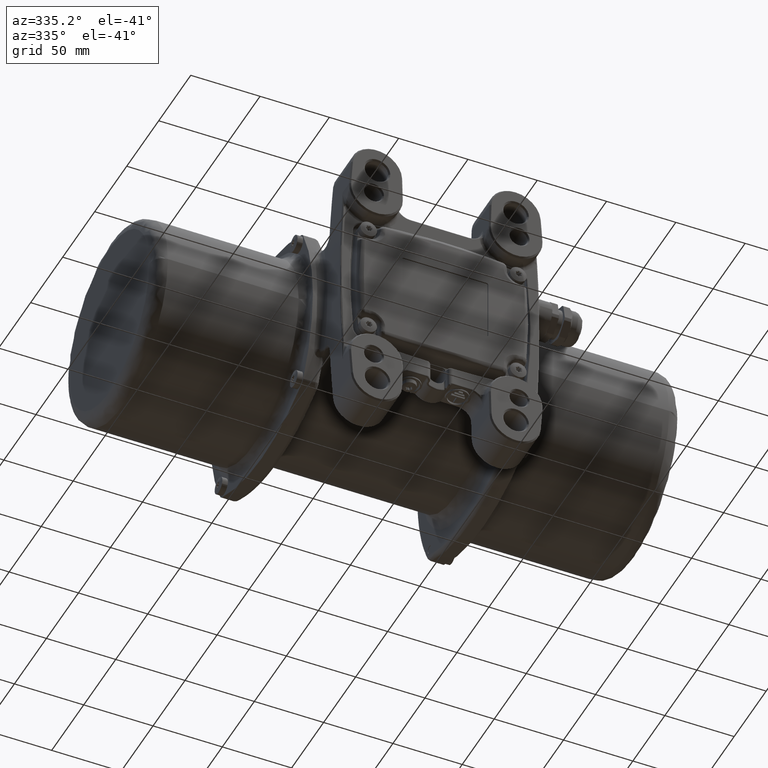
[diagram: clean part render]
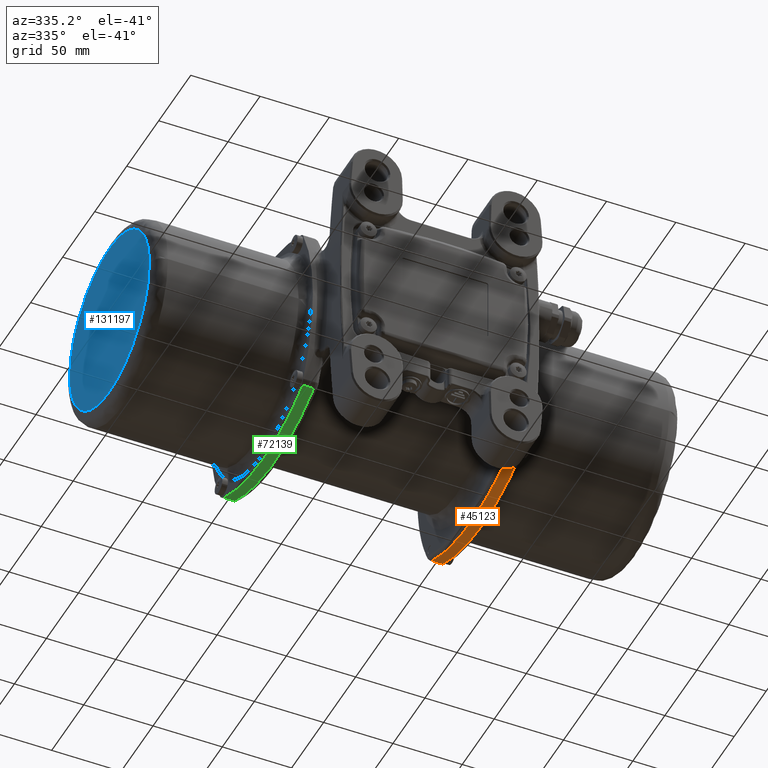
[diagram: same view with three faces highlighted in distinct colors, each labeled with its STEP entity id]
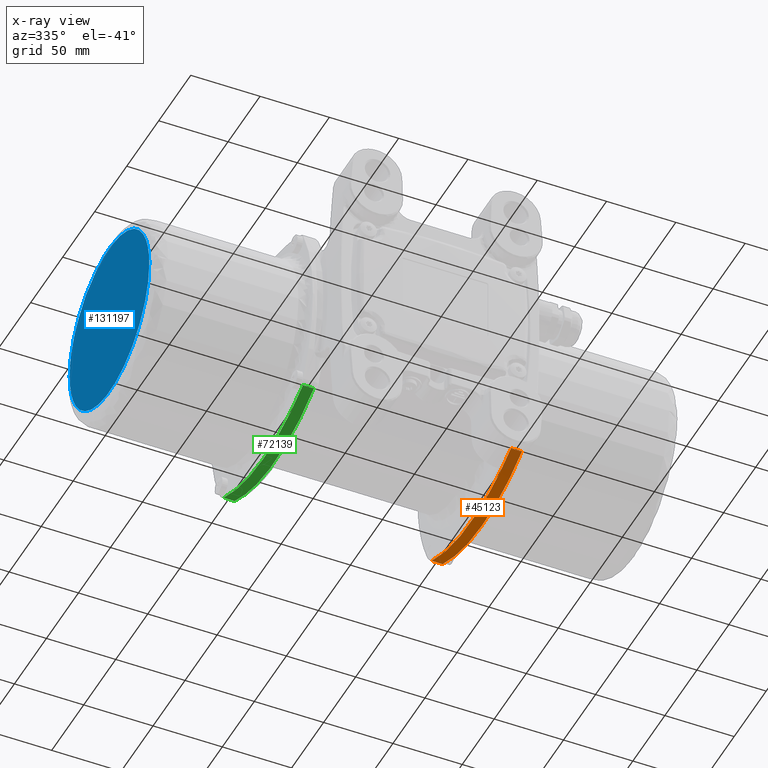
[diagram: x-ray of the same camera — body ghosted, the three highlighted faces saturated]
A machine part, auxiliary view with three faces highlighted in distinct colors.
The next image is the same camera in x-ray (body ghosted, the three faces saturated) — at least one of them is partly hidden behind the body in this view.
Their STEP definitions:

[orange] entity #45123 — the highlighted cylindrical surface (partial cylindrical patch) has radius 134.5 mm, axis along (1, -0, 0).
#578 = CARTESIAN_POINT ( 'NONE',  ( 70.95612079195639400, 144.3279870018037900, -76.79075269301340300 ) ) ;
#1075 = CARTESIAN_POINT ( 'NONE',  ( 71.15591171405670000, 176.9114528322650100, -64.90360969500959200 ) ) ;
#1553 = CARTESIAN_POINT ( 'NONE',  ( 70.93342020331979800, 137.7394523097894100, -78.07064002832389300 ) ) ;
#3006 = CARTESIAN_POINT ( 'NONE',  ( 70.92155368645160300, 96.40308679842370100, -78.73502348362490000 ) ) ;
#7958 = CIRCLE ( 'NONE', #44256, 134.5000000000000000 ) ;
#12620 = LINE ( 'NONE', #86490, #139344 ) ;
#13884 = CARTESIAN_POINT ( 'NONE',  ( 70.89872631646930800, 109.7026604506482000, -80.00142736022189600 ) ) ;
#13933 = VERTEX_POINT ( 'NONE', #39553 ) ;
#14347 = ORIENTED_EDGE ( 'NONE', *, *, #84470, .F. ) ;
#21048 = CARTESIAN_POINT ( 'NONE',  ( 79.00000000000000000, 115.0000000000000000, 54.50000000000000000 ) ) ;
#24264 = CARTESIAN_POINT ( 'NONE',  ( 70.92947539684750800, 136.4105827614282000, -78.29179268681869500 ) ) ;
#25452 = CARTESIAN_POINT ( 'NONE',  ( -90.00000000000000000, 115.0000000000000000, 54.50000000000000000 ) ) ;
#29924 = DIRECTION ( 'NONE',  ( 1.000000000000000000, -8.326672684688669100E-017, 2.810135053042584500E-017 ) ) ;
#32844 = VERTEX_POINT ( 'NONE', #59864 ) ;
#35613 = CARTESIAN_POINT ( 'NONE',  ( 70.91900989626839200, 132.3998665928463900, -78.87657176073919600 ) ) ;
#36541 = CARTESIAN_POINT ( 'NONE',  ( 71.15591171405661400, 53.08854716773560500, -64.90360969501009000 ) ) ;
#37970 = CARTESIAN_POINT ( 'NONE',  ( 70.95596132125859900, 85.79743960532529500, -76.79844603611310600 ) ) ;
#38602 = VERTEX_POINT ( 'NONE', #129188 ) ;
#39553 = CARTESIAN_POINT ( 'NONE',  ( 71.15591171405661400, 53.08854716773560500, -64.90360969501009000 ) ) ;
#42733 = DIRECTION ( 'NONE',  ( 1.031805784967617600E-016, -1.754069834444949900E-015, 1.000000000000000000 ) ) ;
#44256 = AXIS2_PLACEMENT_3D ( 'NONE', #21048, #123340, #42733 ) ;
#45123 = ADVANCED_FACE ( 'NONE', ( #61818 ), #74071, .T. ) ;
#46412 = CARTESIAN_POINT ( 'NONE',  ( 71.01667232937410300, 157.2117544991929800, -73.31593401862650700 ) ) ;
#48344 = CARTESIAN_POINT ( 'NONE',  ( 70.96122672423730600, 84.48391189989530400, -76.49934134550059600 ) ) ;
#49307 = CARTESIAN_POINT ( 'NONE',  ( 71.11590479820939900, 57.88959588610629900, -67.39298084578220500 ) ) ;
#57828 = B_SPLINE_CURVE_WITH_KNOTS ( 'NONE', 3,
 ( #1075, #112844, #113816, #46412, #136365, #578, #69032, #1553, #24264, #102997, #35613, #58213, #125561, #13884, #105853, #3006, #69975, #137322, #81768, #37970, #48344, #83215, #92661, #93626, #49307, #36541 ),
 .UNSPECIFIED., .F., .F.,
 ( 4, 2, 2, 2, 2, 2, 2, 2, 2, 2, 2, 2, 4 ),
 ( 0.0000000000000000000, 0.1250000000000001900, 0.2500000000000000000, 0.3125000000000001100, 0.3437500000000001700, 0.3750000000000006100, 0.5000000000000000000, 0.6250000000000002200, 0.6875000000000003300, 0.7187500000000000000, 0.7500000000000004400, 0.8749999999999998900, 1.000000000000000000 ),
 .UNSPECIFIED. ) ;
#58213 = CARTESIAN_POINT ( 'NONE',  ( 70.90455637896269500, 125.7115112714863900, -79.68106259761140100 ) ) ;
#58952 = DIRECTION ( 'NONE',  ( 1.031805784967617600E-016, 1.031805784967617600E-016, 1.000000000000000000 ) ) ;
#59864 = CARTESIAN_POINT ( 'NONE',  ( 79.00000000000000000, 176.9114528322650100, -64.90360969500959200 ) ) ;
#61818 = FACE_OUTER_BOUND ( 'NONE', #64731, .T. ) ;
#64731 = EDGE_LOOP ( 'NONE', ( #73407, #102922, #14347, #109646 ) ) ;
#69032 = CARTESIAN_POINT ( 'NONE',  ( 70.94624692404100600, 141.7074509130106000, -77.34912294438520100 ) ) ;
#69975 = CARTESIAN_POINT ( 'NONE',  ( 70.92867178042560300, 93.74703827547368500, -78.33762384781360300 ) ) ;
#73407 = ORIENTED_EDGE ( 'NONE', *, *, #100930, .T. ) ;
#74071 = CYLINDRICAL_SURFACE ( 'NONE', #105609, 134.5000000000000000 ) ;
#81768 = CARTESIAN_POINT ( 'NONE',  ( 70.94607786587259600, 88.43803684278299200, -77.35800536310789300 ) ) ;
#82511 = DIRECTION ( 'NONE',  ( 1.000000000000000000, -8.326672684688669100E-017, 2.810135053042584500E-017 ) ) ;
#83215 = CARTESIAN_POINT ( 'NONE',  ( 70.98911848798539400, 77.94978262712649600, -74.90817766600410700 ) ) ;
#84470 = EDGE_CURVE ( 'NONE', #13933, #131757, #12620, .T. ) ;
#86490 = CARTESIAN_POINT ( 'NONE',  ( -90.00000000000000000, 53.08854716773560500, -64.90360969501009000 ) ) ;
#92661 = CARTESIAN_POINT ( 'NONE',  ( 71.01642895906819300, 72.82934880716479100, -73.33022565197050800 ) ) ;
#93626 = CARTESIAN_POINT ( 'NONE',  ( 71.07982323717331500, 62.79928969357421000, -69.57262492494500300 ) ) ;
#97028 = LINE ( 'NONE', #110397, #123380 ) ;
#100930 = EDGE_CURVE ( 'NONE', #38602, #32844, #97028, .T. ) ;
#102922 = ORIENTED_EDGE ( 'NONE', *, *, #106299, .T. ) ;
#102997 = CARTESIAN_POINT ( 'NONE',  ( 70.92226811561560900, 133.7402720909343800, -78.69487775857129500 ) ) ;
#104185 = CARTESIAN_POINT ( 'NONE',  ( 79.00000000000000000, 53.08854716773560500, -64.90360969501009000 ) ) ;
#105609 = AXIS2_PLACEMENT_3D ( 'NONE', #25452, #82511, #58952 ) ;
#105853 = CARTESIAN_POINT ( 'NONE',  ( 70.90445274694329200, 104.3776834847536200, -79.68674690552009600 ) ) ;
#106299 = EDGE_CURVE ( 'NONE', #32844, #131757, #7958, .T. ) ;
#109646 = ORIENTED_EDGE ( 'NONE', *, *, #112103, .F. ) ;
#109888 = DIRECTION ( 'NONE',  ( 1.000000000000000000, -8.326672684688669100E-017, 2.810135053042584500E-017 ) ) ;
#110397 = CARTESIAN_POINT ( 'NONE',  ( -90.00000000000000000, 176.9114528322650100, -64.90360969500969200 ) ) ;
#112103 = EDGE_CURVE ( 'NONE', #38602, #13933, #57828, .T. ) ;
#112844 = CARTESIAN_POINT ( 'NONE',  ( 71.11590491391339700, 172.1104179814515200, -67.39297365537450400 ) ) ;
#113816 = CARTESIAN_POINT ( 'NONE',  ( 71.07988990124039200, 167.2086469652070100, -69.56853907827068900 ) ) ;
#123340 = DIRECTION ( 'NONE',  ( -1.000000000000000000, 8.326672684688669100E-017, -2.810135053042584500E-017 ) ) ;
#123380 = VECTOR ( 'NONE', #109888, 1000.000000000000000 ) ;
#125561 = CARTESIAN_POINT ( 'NONE',  ( 70.89877822204360300, 120.3695749411576100, -79.99856294098270800 ) ) ;
#129188 = CARTESIAN_POINT ( 'NONE',  ( 71.15591171405670000, 176.9114528322650100, -64.90360969500959200 ) ) ;
#131757 = VERTEX_POINT ( 'NONE', #104185 ) ;
#136365 = CARTESIAN_POINT ( 'NONE',  ( 70.98947238709419600, 152.1165397897254900, -74.88772248997069900 ) ) ;
#137322 = CARTESIAN_POINT ( 'NONE',  ( 70.94145714165648500, 89.76626286524930300, -77.61860839077000700 ) ) ;
#139344 = VECTOR ( 'NONE', #29924, 1000.000000000000000 ) ;

[blue] entity #131197 — the highlighted planar face has unit normal (-1, 0, -0).
#2149 = CARTESIAN_POINT ( 'NONE',  ( -190.0000000000000000, 177.2000000000030000, -5.998555886321420200E-012 ) ) ;
#3828 = DIRECTION ( 'NONE',  ( -1.000000000000000000, 1.021747410019493900E-013, -5.620270106084610700E-017 ) ) ;
#5183 = ORIENTED_EDGE ( 'NONE', *, *, #106845, .F. ) ;
#12987 = CARTESIAN_POINT ( 'NONE',  ( -190.0000000000135000, 52.80000000001430000, -6.013304111636330700E-012 ) ) ;
#26029 = CARTESIAN_POINT ( 'NONE',  ( -190.0000000000145000, 43.60000000000879800, -6.013814814227660600E-012 ) ) ;
#34226 = CARTESIAN_POINT ( 'NONE',  ( -190.0000000000007400, 177.2000000000030600, 124.3999999999827300 ) ) ;
#34719 = CARTESIAN_POINT ( 'NONE',  ( -190.0000000000000000, 177.2000000000030000, -5.998555886321420200E-012 ) ) ;
#35706 = CARTESIAN_POINT ( 'NONE',  ( -190.0000000000007700, 177.2000000000026600, -124.3999999999950300 ) ) ;
#39362 = FACE_OUTER_BOUND ( 'NONE', #114839, .T. ) ;
#39508 = CARTESIAN_POINT ( 'NONE',  ( -190.0000000000000000, 177.2000000000030000, -5.998555886321420200E-012 ) ) ;
#45359 =( BOUNDED_CURVE ( )  B_SPLINE_CURVE ( 3, ( #34719, #34226, #92240, #12987 ),
 .UNSPECIFIED., .F., .F. ) 
 B_SPLINE_CURVE_WITH_KNOTS ( ( 4, 4 ),
 ( 0.0000000000000000000, 1.000000000000000000 ),
 .UNSPECIFIED. ) 
 CURVE ( )  GEOMETRIC_REPRESENTATION_ITEM ( )  RATIONAL_B_SPLINE_CURVE ( ( 1.000000000000000000, 0.3333333333333327600, 0.3333333333333327600, 1.000000000000000000 ) ) 
 REPRESENTATION_ITEM ( '' )  );
#55364 = EDGE_CURVE ( 'NONE', #118508, #119389, #129363, .T. ) ;
#69603 = CARTESIAN_POINT ( 'NONE',  ( -190.0000000000135000, 52.80000000001430000, -6.013304111636330700E-012 ) ) ;
#85595 = ORIENTED_EDGE ( 'NONE', *, *, #55364, .F. ) ;
#92240 = CARTESIAN_POINT ( 'NONE',  ( -190.0000000000135000, 52.80000000001425100, 124.3999999999828200 ) ) ;
#93501 = DIRECTION ( 'NONE',  ( -1.021747410019493900E-013, -1.000000000000000000, -5.551115123126359600E-017 ) ) ;
#102121 = CARTESIAN_POINT ( 'NONE',  ( -190.0000000000135000, 52.80000000001369600, -124.3999999999946500 ) ) ;
#103406 = AXIS2_PLACEMENT_3D ( 'NONE', #26029, #3828, #93501 ) ;
#105127 = CARTESIAN_POINT ( 'NONE',  ( -190.0000000000135000, 52.80000000001430000, -6.013304111636330700E-012 ) ) ;
#106845 = EDGE_CURVE ( 'NONE', #119389, #118508, #45359, .T. ) ;
#114839 = EDGE_LOOP ( 'NONE', ( #5183, #85595 ) ) ;
#115632 = PLANE ( 'NONE',  #103406 ) ;
#118508 = VERTEX_POINT ( 'NONE', #105127 ) ;
#119389 = VERTEX_POINT ( 'NONE', #39508 ) ;
#129363 =( BOUNDED_CURVE ( )  B_SPLINE_CURVE ( 3, ( #69603, #102121, #35706, #2149 ),
 .UNSPECIFIED., .F., .F. ) 
 B_SPLINE_CURVE_WITH_KNOTS ( ( 4, 4 ),
 ( 0.0000000000000000000, 1.000000000000000000 ),
 .UNSPECIFIED. ) 
 CURVE ( )  GEOMETRIC_REPRESENTATION_ITEM ( )  RATIONAL_B_SPLINE_CURVE ( ( 1.000000000000000000, 0.3333333333333324800, 0.3333333333333324800, 1.000000000000000000 ) ) 
 REPRESENTATION_ITEM ( '' )  );
#131197 = ADVANCED_FACE ( 'NONE', ( #39362 ), #115632, .T. ) ;

[green] entity #72139 — the highlighted cylindrical surface (partial cylindrical patch) has radius 134.5 mm, axis along (1, -0, 0).
#4770 = CARTESIAN_POINT ( 'NONE',  ( -71.15591171405640100, 176.9114528322650100, -64.90360969500959200 ) ) ;
#6449 = ORIENTED_EDGE ( 'NONE', *, *, #113545, .F. ) ;
#6962 = CARTESIAN_POINT ( 'NONE',  ( -79.00000000000000000, 53.08854716773560500, -64.90360969501009000 ) ) ;
#8857 = CARTESIAN_POINT ( 'NONE',  ( -90.00000000000000000, 115.0000000000000000, 54.50000000000000000 ) ) ;
#11327 = CARTESIAN_POINT ( 'NONE',  ( -71.15591171405651500, 53.08854716773560500, -64.90360969501009000 ) ) ;
#12062 = DIRECTION ( 'NONE',  ( -1.000000000000000000, 8.326672684688669100E-017, -2.810135053042584500E-017 ) ) ;
#12322 = CARTESIAN_POINT ( 'NONE',  ( -71.01642895903160000, 157.1706511928640000, -73.33022565195980700 ) ) ;
#12806 = CARTESIAN_POINT ( 'NONE',  ( -70.95596132125840000, 144.2025603946664200, -76.79844603611481100 ) ) ;
#13757 = CARTESIAN_POINT ( 'NONE',  ( -71.11590479835828700, 172.1104041139130100, -67.39298084577220000 ) ) ;
#14906 = DIRECTION ( 'NONE',  ( 1.031805784967617600E-016, 1.031805784967617600E-016, 1.000000000000000000 ) ) ;
#25040 = CARTESIAN_POINT ( 'NONE',  ( -71.15591171405651500, 53.08854716773560500, -64.90360969501009000 ) ) ;
#34667 = AXIS2_PLACEMENT_3D ( 'NONE', #8857, #55155, #99947 ) ;
#35943 = CARTESIAN_POINT ( 'NONE',  ( -70.89872631646900900, 120.2973395493526100, -80.00142736022189600 ) ) ;
#36945 = LINE ( 'NONE', #125668, #66894 ) ;
#37253 = VERTEX_POINT ( 'NONE', #6962 ) ;
#43407 = CARTESIAN_POINT ( 'NONE',  ( -70.98947238709389800, 77.88346021028380100, -74.88772248997310000 ) ) ;
#45818 = CARTESIAN_POINT ( 'NONE',  ( -70.94145714165630100, 140.2337371347536000, -77.61860839076950900 ) ) ;
#47029 = ORIENTED_EDGE ( 'NONE', *, *, #124842, .T. ) ;
#55155 = DIRECTION ( 'NONE',  ( 1.000000000000000000, -8.326672684688669100E-017, 2.810135053042584500E-017 ) ) ;
#56726 = CIRCLE ( 'NONE', #85482, 134.5000000000000000 ) ;
#57104 = CARTESIAN_POINT ( 'NONE',  ( -70.89877822204329000, 109.6304250588432000, -79.99856294098270800 ) ) ;
#65852 = VECTOR ( 'NONE', #90257, 1000.000000000000000 ) ;
#66456 = ORIENTED_EDGE ( 'NONE', *, *, #132225, .T. ) ;
#66489 = CARTESIAN_POINT ( 'NONE',  ( -71.01667232937390400, 72.78824550078810800, -73.31593401861940200 ) ) ;
#66894 = VECTOR ( 'NONE', #12062, 1000.000000000000000 ) ;
#67557 = LINE ( 'NONE', #78913, #65852 ) ;
#67938 = CARTESIAN_POINT ( 'NONE',  ( -70.96122672423710800, 145.5160881000967900, -76.49934134550250100 ) ) ;
#68427 = CARTESIAN_POINT ( 'NONE',  ( -70.98911848798509500, 152.0502173729090300, -74.90817766599531100 ) ) ;
#72139 = ADVANCED_FACE ( 'NONE', ( #111365 ), #134172, .T. ) ;
#72453 = VERTEX_POINT ( 'NONE', #4770 ) ;
#75979 = EDGE_CURVE ( 'NONE', #134557, #72453, #80284, .T. ) ;
#77794 = CARTESIAN_POINT ( 'NONE',  ( -70.94624692404079300, 88.29254908697579700, -77.34912294438279900 ) ) ;
#78282 = CARTESIAN_POINT ( 'NONE',  ( -70.93342020331950000, 92.26054769021860100, -78.07064002832540000 ) ) ;
#78913 = CARTESIAN_POINT ( 'NONE',  ( -90.00000000000000000, 176.9114528322650100, -64.90360969500959200 ) ) ;
#79244 = CARTESIAN_POINT ( 'NONE',  ( -70.91900989625909800, 97.60013340715100600, -78.87657176073889800 ) ) ;
#79732 = CARTESIAN_POINT ( 'NONE',  ( -70.90445274694309300, 125.6223165152781900, -79.68674690551628700 ) ) ;
#80218 = CARTESIAN_POINT ( 'NONE',  ( -70.90455637899910400, 104.2884887285278100, -79.68106259761309200 ) ) ;
#80284 = B_SPLINE_CURVE_WITH_KNOTS ( 'NONE', 3,
 ( #11327, #88176, #144233, #66489, #43407, #133349, #77794, #78282, #89634, #114668, #79244, #80218, #57104, #35943, #79732, #113199, #102387, #45818, #124478, #12806, #67938, #68427, #12322, #124969, #13757, #137200 ),
 .UNSPECIFIED., .F., .F.,
 ( 4, 2, 2, 2, 2, 2, 2, 2, 2, 2, 2, 2, 4 ),
 ( 0.0000000000000000000, 0.1249999999999998600, 0.2500000000000000600, 0.3125000000000001700, 0.3437500000000002200, 0.3749999999999998900, 0.5000000000000001100, 0.6250000000000003300, 0.6875000000000004400, 0.7187500000000001100, 0.7500000000000005600, 0.8750000000000000000, 1.000000000000000000 ),
 .UNSPECIFIED. ) ;
#82318 = CARTESIAN_POINT ( 'NONE',  ( -79.00000000000000000, 115.0000000000000000, 54.50000000000000000 ) ) ;
#83760 = DIRECTION ( 'NONE',  ( 1.000000000000000000, -8.326672684688669100E-017, 2.810135053042584500E-017 ) ) ;
#85482 = AXIS2_PLACEMENT_3D ( 'NONE', #82318, #83760, #14906 ) ;
#88176 = CARTESIAN_POINT ( 'NONE',  ( -71.11590491376628600, 57.88958201853450400, -67.39297365536710100 ) ) ;
#89634 = CARTESIAN_POINT ( 'NONE',  ( -70.92947539684729500, 93.58941723857960000, -78.29179268681988900 ) ) ;
#90257 = DIRECTION ( 'NONE',  ( -1.000000000000000000, 8.326672684688669100E-017, -2.810135053042584500E-017 ) ) ;
#93955 = ORIENTED_EDGE ( 'NONE', *, *, #75979, .F. ) ;
#99947 = DIRECTION ( 'NONE',  ( 1.031805784967617600E-016, 1.031805784967617600E-016, 1.000000000000000000 ) ) ;
#102387 = CARTESIAN_POINT ( 'NONE',  ( -70.92867178042540400, 136.2529617245226100, -78.33762384781420000 ) ) ;
#111365 = FACE_OUTER_BOUND ( 'NONE', #146033, .T. ) ;
#113199 = CARTESIAN_POINT ( 'NONE',  ( -70.92155368645140400, 133.5969132015613900, -78.73502348362670500 ) ) ;
#113545 = EDGE_CURVE ( 'NONE', #72453, #137776, #67557, .T. ) ;
#114668 = CARTESIAN_POINT ( 'NONE',  ( -70.92226811561541000, 96.25972790905919400, -78.69487775857030000 ) ) ;
#115385 = CARTESIAN_POINT ( 'NONE',  ( -79.00000000000000000, 176.9114528322650100, -64.90360969500959200 ) ) ;
#124478 = CARTESIAN_POINT ( 'NONE',  ( -70.94607786587239700, 141.5619631572269800, -77.35800536310570400 ) ) ;
#124842 = EDGE_CURVE ( 'NONE', #134557, #37253, #36945, .T. ) ;
#124969 = CARTESIAN_POINT ( 'NONE',  ( -71.07982323720941100, 167.2007103063984900, -69.57262492495509300 ) ) ;
#125668 = CARTESIAN_POINT ( 'NONE',  ( -90.00000000000000000, 53.08854716773560500, -64.90360969501009000 ) ) ;
#132225 = EDGE_CURVE ( 'NONE', #37253, #137776, #56726, .T. ) ;
#133349 = CARTESIAN_POINT ( 'NONE',  ( -70.95612079195620900, 85.67201299819259900, -76.79075269301259300 ) ) ;
#134172 = CYLINDRICAL_SURFACE ( 'NONE', #34667, 134.5000000000000000 ) ;
#134557 = VERTEX_POINT ( 'NONE', #25040 ) ;
#137200 = CARTESIAN_POINT ( 'NONE',  ( -71.15591171405640100, 176.9114528322650100, -64.90360969500959200 ) ) ;
#137776 = VERTEX_POINT ( 'NONE', #115385 ) ;
#144233 = CARTESIAN_POINT ( 'NONE',  ( -71.07988990124020700, 62.79135303481339700, -69.56853907827849100 ) ) ;
#146033 = EDGE_LOOP ( 'NONE', ( #47029, #66456, #6449, #93955 ) ) ;